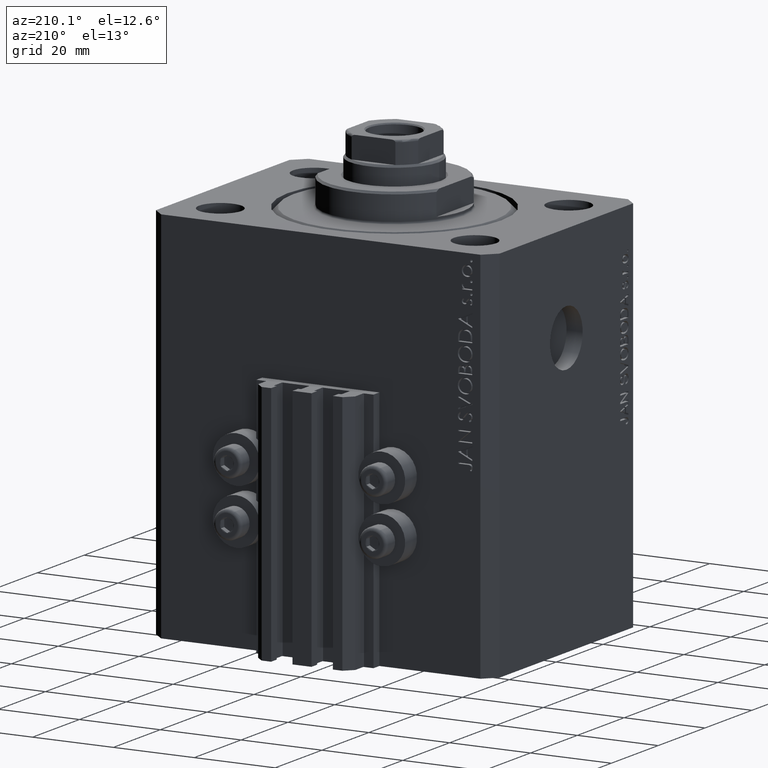
[diagram: clean part render]
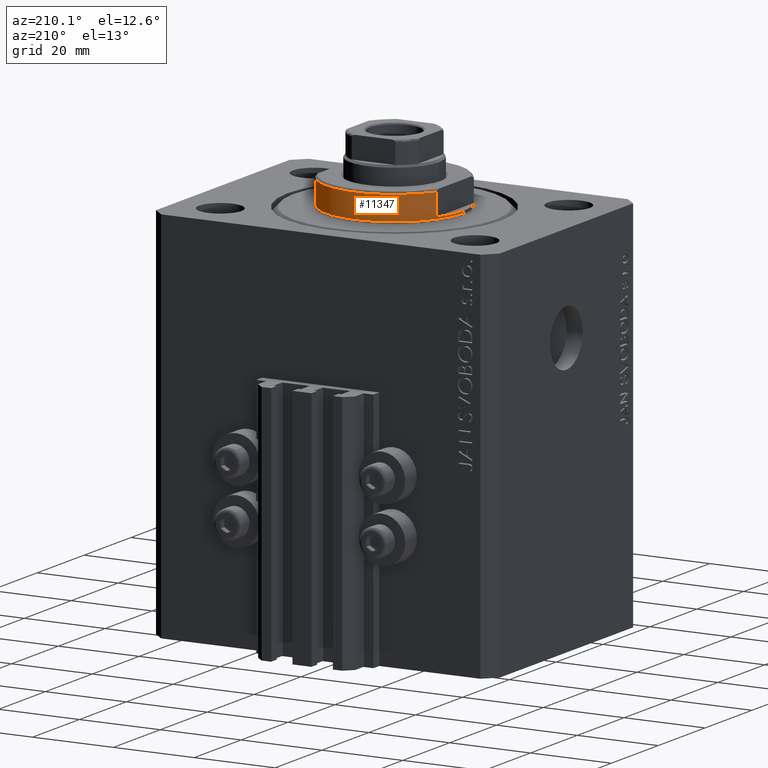
[diagram: same view with one face highlighted and labeled with its STEP entity id]
A machine part, auxiliary view. The second image highlights one B-rep face of the part: STEP entity #11347.
In plain terms, the highlighted cylindrical surface (partial cylindrical patch) has radius 17 mm, axis along (0, 0, -1).
Its self-contained STEP definition (entity closure, byte-faithful):
#369 = DIRECTION ( 'NONE',  ( -1.000000000000000000, 0.000000000000000000, 0.000000000000000000 ) ) ;
#968 = CIRCLE ( 'NONE', #29931, 17.00000000000000000 ) ;
#2227 = ORIENTED_EDGE ( 'NONE', *, *, #2455, .T. ) ;
#2455 = EDGE_CURVE ( 'NONE', #9303, #39176, #30979, .T. ) ;
#3496 = DIRECTION ( 'NONE',  ( 0.000000000000000000, 0.000000000000000000, -1.000000000000000000 ) ) ;
#4392 = VECTOR ( 'NONE', #17602, 1000.000000000000000 ) ;
#4557 = DIRECTION ( 'NONE',  ( -0.000000000000000000, -0.000000000000000000, -1.000000000000000000 ) ) ;
#4796 = CARTESIAN_POINT ( 'NONE',  ( 0.000000000000000000, 0.000000000000000000, -7.000000000000000000 ) ) ;
#6988 = VERTEX_POINT ( 'NONE', #26672 ) ;
#7708 = DIRECTION ( 'NONE',  ( -0.000000000000000000, -0.000000000000000000, 1.000000000000000000 ) ) ;
#8401 = ORIENTED_EDGE ( 'NONE', *, *, #10300, .F. ) ;
#8794 = DIRECTION ( 'NONE',  ( -0.000000000000000000, -0.000000000000000000, 1.000000000000000000 ) ) ;
#8840 = FACE_OUTER_BOUND ( 'NONE', #8866, .T. ) ;
#8866 = EDGE_LOOP ( 'NONE', ( #26603, #2227, #17509, #8401, #28537, #40561, #33786, #12801 ) ) ;
#9303 = VERTEX_POINT ( 'NONE', #10778 ) ;
#9309 = CARTESIAN_POINT ( 'NONE',  ( -15.00000000000000000, 8.000000000000001776, -6.500000000000013323 ) ) ;
#10300 = EDGE_CURVE ( 'NONE', #19778, #6988, #22504, .T. ) ;
#10438 = DIRECTION ( 'NONE',  ( -0.000000000000000000, -0.000000000000000000, 1.000000000000000000 ) ) ;
#10683 = AXIS2_PLACEMENT_3D ( 'NONE', #16116, #45468, #15654 ) ;
#10778 = CARTESIAN_POINT ( 'NONE',  ( -17.00000000000000000, 2.081899558550500280E-15, -1.000000000000000000 ) ) ;
#11347 = ADVANCED_FACE ( 'NONE', ( #8840 ), #45133, .T. ) ;
#11518 = CARTESIAN_POINT ( 'NONE',  ( 17.00000000000000000, 0.000000000000000000, -7.000000000000000000 ) ) ;
#11895 = CARTESIAN_POINT ( 'NONE',  ( -17.00000000000000000, 2.081899558550500280E-15, -0.4999999999999995559 ) ) ;
#11949 = CIRCLE ( 'NONE', #40920, 17.00000000000000000 ) ;
#12367 = CARTESIAN_POINT ( 'NONE',  ( -17.00000000000000000, 2.081899558550500280E-15, -7.000000000000000000 ) ) ;
#12801 = ORIENTED_EDGE ( 'NONE', *, *, #23415, .T. ) ;
#13779 = LINE ( 'NONE', #32644, #32723 ) ;
#13784 = LINE ( 'NONE', #18312, #4392 ) ;
#14500 = EDGE_CURVE ( 'NONE', #39176, #6988, #17907, .T. ) ;
#14958 = CARTESIAN_POINT ( 'NONE',  ( 15.00000000000000000, 8.000000000000001776, -6.500000000000013323 ) ) ;
#15004 = CARTESIAN_POINT ( 'NONE',  ( -14.99999999999999645, 8.000000000000003553, -1.000000000000000000 ) ) ;
#15654 = DIRECTION ( 'NONE',  ( -1.000000000000000000, 0.000000000000000000, 0.000000000000000000 ) ) ;
#15907 = VERTEX_POINT ( 'NONE', #15004 ) ;
#16116 = CARTESIAN_POINT ( 'NONE',  ( 0.000000000000000000, 0.000000000000000000, -1.000000000000000000 ) ) ;
#16805 = EDGE_CURVE ( 'NONE', #45608, #37912, #13784, .T. ) ;
#17058 = VECTOR ( 'NONE', #7708, 1000.000000000000000 ) ;
#17509 = ORIENTED_EDGE ( 'NONE', *, *, #14500, .T. ) ;
#17602 = DIRECTION ( 'NONE',  ( -0.000000000000000000, -0.000000000000000000, 1.000000000000000000 ) ) ;
#17907 = CIRCLE ( 'NONE', #19452, 17.00000000000000000 ) ;
#18312 = CARTESIAN_POINT ( 'NONE',  ( 15.00000000000000000, 8.000000000000001776, -7.000000000000000000 ) ) ;
#18506 = EDGE_CURVE ( 'NONE', #45608, #41831, #11949, .T. ) ;
#19452 = AXIS2_PLACEMENT_3D ( 'NONE', #40130, #4557, #22693 ) ;
#19778 = VERTEX_POINT ( 'NONE', #35514 ) ;
#22504 = LINE ( 'NONE', #11518, #17058 ) ;
#22693 = DIRECTION ( 'NONE',  ( 1.000000000000000000, 0.000000000000000000, 0.000000000000000000 ) ) ;
#23415 = EDGE_CURVE ( 'NONE', #41831, #15907, #13779, .T. ) ;
#23618 = DIRECTION ( 'NONE',  ( 1.000000000000000000, 0.000000000000000000, 0.000000000000000000 ) ) ;
#24391 = CIRCLE ( 'NONE', #10683, 17.00000000000000000 ) ;
#24951 = DIRECTION ( 'NONE',  ( 0.000000000000000000, 0.000000000000000000, 1.000000000000000000 ) ) ;
#25394 = CARTESIAN_POINT ( 'NONE',  ( 14.99999999999999645, 8.000000000000003553, -1.000000000000000000 ) ) ;
#26603 = ORIENTED_EDGE ( 'NONE', *, *, #41070, .F. ) ;
#26672 = CARTESIAN_POINT ( 'NONE',  ( 17.00000000000000000, 0.000000000000000000, -0.4999999999999995559 ) ) ;
#28537 = ORIENTED_EDGE ( 'NONE', *, *, #32126, .F. ) ;
#29042 = VECTOR ( 'NONE', #8794, 1000.000000000000000 ) ;
#29931 = AXIS2_PLACEMENT_3D ( 'NONE', #31941, #3496, #43131 ) ;
#30979 = LINE ( 'NONE', #12367, #29042 ) ;
#31941 = CARTESIAN_POINT ( 'NONE',  ( 0.000000000000000000, 0.000000000000000000, -1.000000000000000000 ) ) ;
#32126 = EDGE_CURVE ( 'NONE', #37912, #19778, #24391, .T. ) ;
#32644 = CARTESIAN_POINT ( 'NONE',  ( -15.00000000000000000, 8.000000000000001776, -7.000000000000000000 ) ) ;
#32723 = VECTOR ( 'NONE', #10438, 1000.000000000000000 ) ;
#33786 = ORIENTED_EDGE ( 'NONE', *, *, #18506, .T. ) ;
#35514 = CARTESIAN_POINT ( 'NONE',  ( 17.00000000000000000, 0.000000000000000000, -1.000000000000000000 ) ) ;
#37912 = VERTEX_POINT ( 'NONE', #25394 ) ;
#39176 = VERTEX_POINT ( 'NONE', #11895 ) ;
#40130 = CARTESIAN_POINT ( 'NONE',  ( 0.000000000000000000, 0.000000000000000000, -0.4999999999999995559 ) ) ;
#40236 = CARTESIAN_POINT ( 'NONE',  ( 0.000000000000000000, 0.000000000000000000, -6.500000000000013323 ) ) ;
#40561 = ORIENTED_EDGE ( 'NONE', *, *, #16805, .F. ) ;
#40920 = AXIS2_PLACEMENT_3D ( 'NONE', #40236, #24951, #369 ) ;
#41070 = EDGE_CURVE ( 'NONE', #9303, #15907, #968, .T. ) ;
#41831 = VERTEX_POINT ( 'NONE', #9309 ) ;
#43131 = DIRECTION ( 'NONE',  ( -1.000000000000000000, 0.000000000000000000, 0.000000000000000000 ) ) ;
#44531 = AXIS2_PLACEMENT_3D ( 'NONE', #4796, #44905, #23618 ) ;
#44905 = DIRECTION ( 'NONE',  ( -0.000000000000000000, -0.000000000000000000, 1.000000000000000000 ) ) ;
#45133 = CYLINDRICAL_SURFACE ( 'NONE', #44531, 17.00000000000000000 ) ;
#45468 = DIRECTION ( 'NONE',  ( 0.000000000000000000, 0.000000000000000000, -1.000000000000000000 ) ) ;
#45608 = VERTEX_POINT ( 'NONE', #14958 ) ;